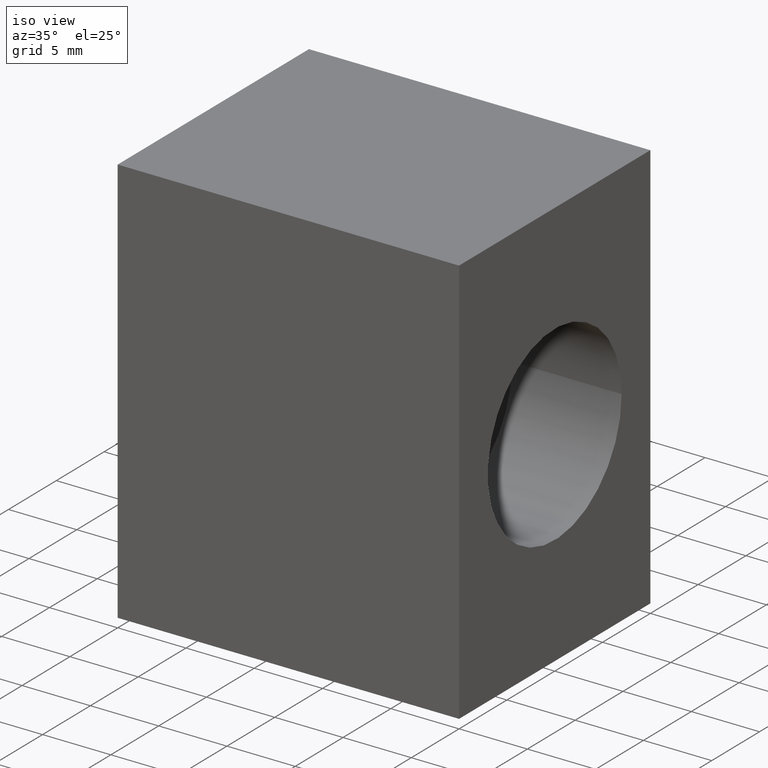
[diagram: clean part render]
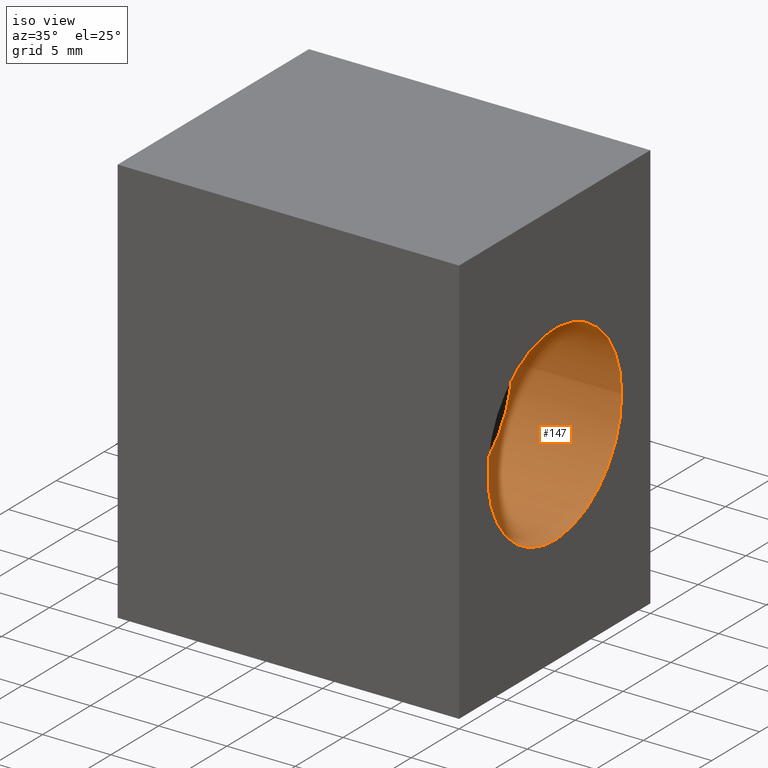
[diagram: same view with one face highlighted and labeled with its STEP entity id]
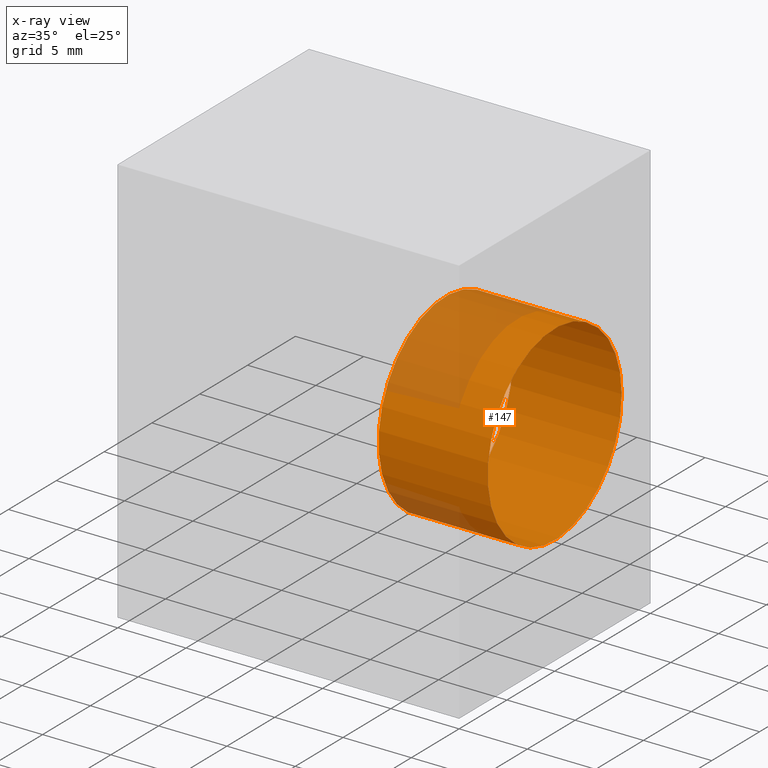
[diagram: x-ray of the same camera — body ghosted, the highlighted face saturated]
A machine part, iso view. The second image highlights one B-rep face of the part: STEP entity #147.
The next image is the same camera in x-ray: the body ghosted, the highlighted face saturated — about 22% of this face is hidden behind the body in this view.
In plain terms, the highlighted cylindrical surface (bore or boss wall) has radius 7 mm, axis along (-1, 0, 0).
Its self-contained STEP definition (entity closure, byte-faithful):
#26=FACE_OUTER_BOUND('',#35,.T.);
#35=EDGE_LOOP('',(#112,#113,#114,#115));
#47=LINE('',#244,#61);
#61=VECTOR('',#204,7.);
#76=CIRCLE('',#182,7.);
#77=CIRCLE('',#183,7.);
#80=VERTEX_POINT('',#241);
#81=VERTEX_POINT('',#243);
#93=EDGE_CURVE('',#80,#80,#76,.T.);
#94=EDGE_CURVE('',#80,#81,#47,.T.);
#95=EDGE_CURVE('',#81,#81,#77,.T.);
#112=ORIENTED_EDGE('',*,*,#93,.F.);
#113=ORIENTED_EDGE('',*,*,#94,.T.);
#114=ORIENTED_EDGE('',*,*,#95,.F.);
#115=ORIENTED_EDGE('',*,*,#94,.F.);
#145=CYLINDRICAL_SURFACE('',#181,7.);
#147=ADVANCED_FACE('',(#26),#145,.F.);
#181=AXIS2_PLACEMENT_3D('',#240,#200,#201);
#182=AXIS2_PLACEMENT_3D('',#242,#202,#203);
#183=AXIS2_PLACEMENT_3D('',#245,#205,#206);
#200=DIRECTION('center_axis',(-1.,0.,0.));
#201=DIRECTION('ref_axis',(0.,-1.,0.));
#202=DIRECTION('center_axis',(-1.,0.,0.));
#203=DIRECTION('ref_axis',(0.,0.,-1.));
#204=DIRECTION('',(-1.,0.,0.));
#205=DIRECTION('center_axis',(1.,0.,0.));
#206=DIRECTION('ref_axis',(0.,0.,-1.));
#240=CARTESIAN_POINT('Origin',(1.E-8,1.776357E-15,0.));
#241=CARTESIAN_POINT('',(0.,7.00000000000001,-8.57252759403148E-16));
#242=CARTESIAN_POINT('Origin',(0.,0.,0.));
#243=CARTESIAN_POINT('',(-8.00000000000001,7.00000000000001,-8.57252759403148E-16));
#244=CARTESIAN_POINT('',(1.E-8,7.00000000000001,-8.57252759403148E-16));
#245=CARTESIAN_POINT('Origin',(-8.00000000000001,0.,0.));